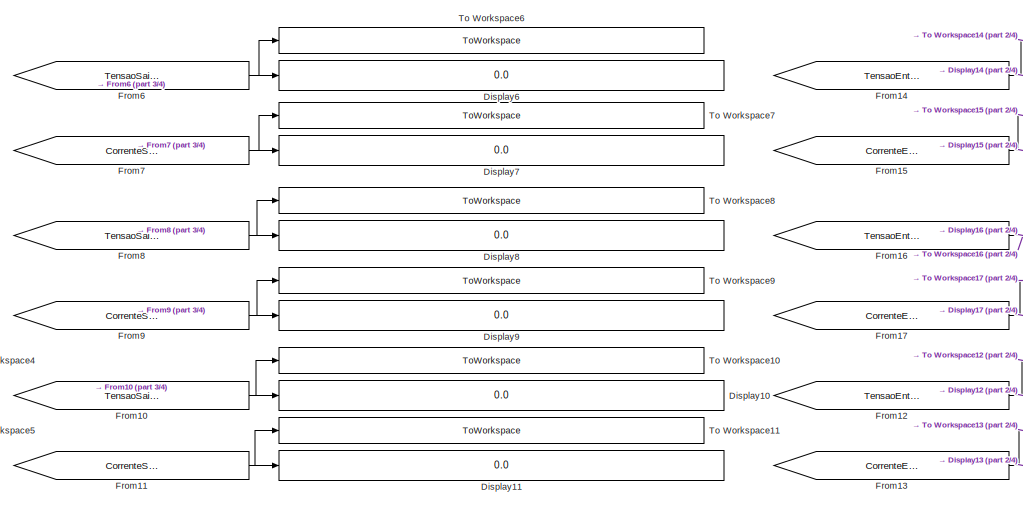
[diagram: root canvas - part 1/4, top center region]
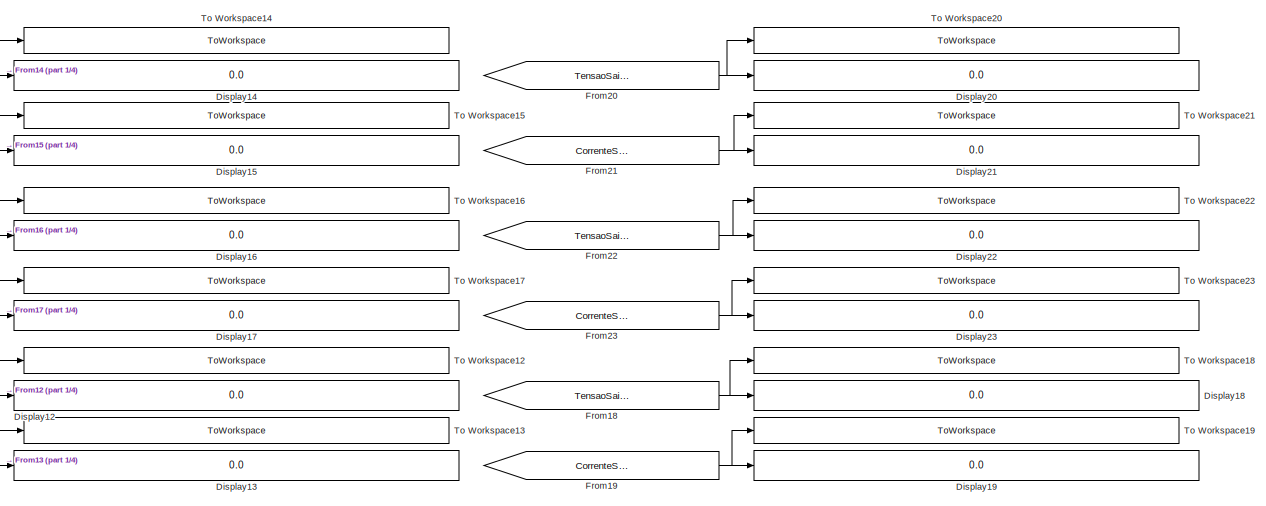
[diagram: root canvas - part 2/4, top right region]
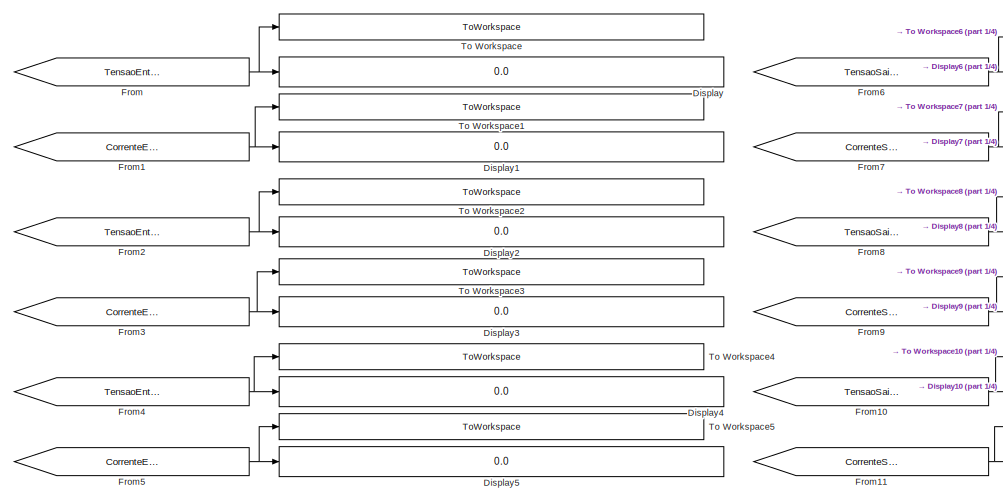
[diagram: root canvas - part 3/4, top left region]
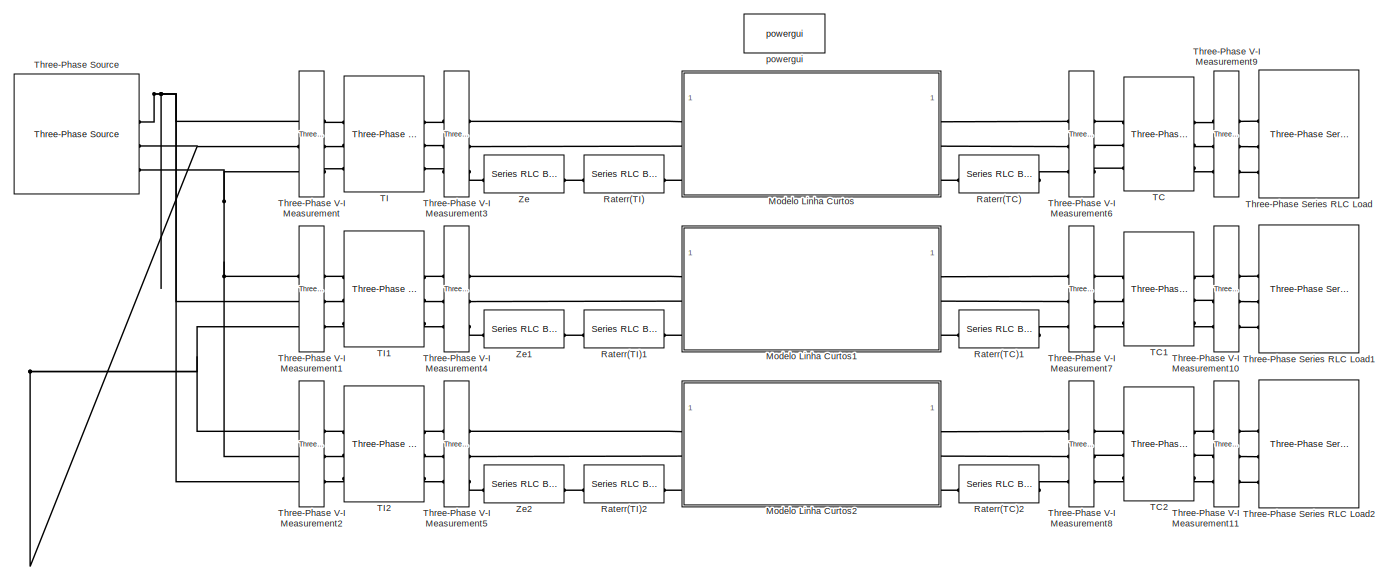
[diagram: root canvas - part 4/4, bottom center region]
MODEL slx_497a77ff1330
KIND model
CONFIG AbsTol = auto
CONFIG EnableMultiTasking = on
CONFIG FixedStep = auto
CONFIG MaxStep = auto
CONFIG MinStep = auto
CONFIG RelTol = 1e-3
CONFIG SampleTimeConstraint = Unconstrained
CONFIG SolverName = ode45
CONFIG StartTime = 0.0
CONFIG StopTime = 0.1
BLOCK [Display] Display
  Decimation = 1
BLOCK [Display] Display1
  Decimation = 1
BLOCK [Display] Display10
  Decimation = 1
BLOCK [Display] Display11
  Decimation = 1
BLOCK [Display] Display12
  Decimation = 1
BLOCK [Display] Display13
  Decimation = 1
BLOCK [Display] Display14
  Decimation = 1
BLOCK [Display] Display15
  Decimation = 1
BLOCK [Display] Display16
  Decimation = 1
BLOCK [Display] Display17
  Decimation = 1
BLOCK [Display] Display18
  Decimation = 1
BLOCK [Display] Display19
  Decimation = 1
BLOCK [Display] Display2
  Decimation = 1
BLOCK [Display] Display20
  Decimation = 1
BLOCK [Display] Display21
  Decimation = 1
BLOCK [Display] Display22
  Decimation = 1
BLOCK [Display] Display23
  Decimation = 1
BLOCK [Display] Display3
  Decimation = 1
BLOCK [Display] Display4
  Decimation = 1
BLOCK [Display] Display5
  Decimation = 1
BLOCK [Display] Display6
  Decimation = 1
BLOCK [Display] Display7
  Decimation = 1
BLOCK [Display] Display8
  Decimation = 1
BLOCK [Display] Display9
  Decimation = 1
BLOCK [From] From
  GotoTag = TensaoEntradaTrafoIsolador1
  TagVisibility = global
BLOCK [From] From1
  GotoTag = CorrenteEntradaTrafoIsolador1
  TagVisibility = global
BLOCK [From] From10
  GotoTag = TensaoSaidaTrafoIsolador3
  TagVisibility = global
BLOCK [From] From11
  GotoTag = CorrenteSaidaTrafoIsolador3
  TagVisibility = global
BLOCK [From] From12
  GotoTag = TensaoEntradaTrafoConsumidor3
  TagVisibility = global
BLOCK [From] From13
  GotoTag = CorrenteEntradaTrafoConsumidor3
  TagVisibility = global
BLOCK [From] From14
  GotoTag = TensaoEntradaTrafoConsumidor1
  TagVisibility = global
BLOCK [From] From15
  GotoTag = CorrenteEntradaTrafoConsumidor1
  TagVisibility = global
BLOCK [From] From16
  GotoTag = TensaoEntradaTrafoConsumidor2
  TagVisibility = global
BLOCK [From] From17
  GotoTag = CorrenteEntradaTrafoConsumidor2
  TagVisibility = global
BLOCK [From] From18
  GotoTag = TensaoSaidaTrafoConsumidor3
  TagVisibility = global
BLOCK [From] From19
  GotoTag = CorrenteSaidaTrafoConsumidor3
  TagVisibility = global
BLOCK [From] From2
  GotoTag = TensaoEntradaTrafoIsolador2
  TagVisibility = global
BLOCK [From] From20
  GotoTag = TensaoSaidaTrafoConsumidor1
  TagVisibility = global
BLOCK [From] From21
  GotoTag = CorrenteSaidaTrafoConsumidor1
  TagVisibility = global
BLOCK [From] From22
  GotoTag = TensaoSaidaTrafoConsumidor2
  TagVisibility = global
BLOCK [From] From23
  GotoTag = CorrenteSaidaTrafoConsumidor2
  TagVisibility = global
BLOCK [From] From3
  GotoTag = CorrenteEntradaTrafoIsolador2
  TagVisibility = global
BLOCK [From] From4
  GotoTag = TensaoEntradaTrafoIsolador3
  TagVisibility = global
BLOCK [From] From5
  GotoTag = CorrenteEntradaTrafoIsolador3
  TagVisibility = global
BLOCK [From] From6
  GotoTag = TensaoSaidaTrafoIsolador1
  TagVisibility = global
BLOCK [From] From7
  GotoTag = CorrenteSaidaTrafoIsolador1
  TagVisibility = global
BLOCK [From] From8
  GotoTag = TensaoSaidaTrafoIsolador2
  TagVisibility = global
BLOCK [From] From9
  GotoTag = CorrenteSaidaTrafoIsolador2
  TagVisibility = global
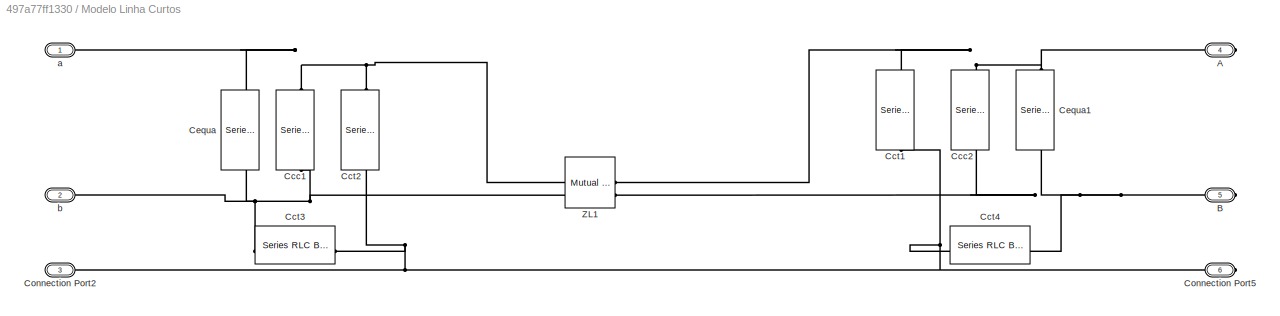
BLOCK [SubSystem] Modelo Linha Curtos
BLOCK [PMIOPort] Modelo Linha Curtos/A
  NameLocation = top
  Port = 4
  Side = Right
BLOCK [PMIOPort] Modelo Linha Curtos/B
  NameLocation = top
  Port = 5
  Side = Right
BLOCK [Reference] Modelo Linha Curtos/Ccc1  REF=spsSeriesRLCBranchLib/Series RLC Branch
  NameLocation = left
  SourceBlock = spsSeriesRLCBranchLib/Series RLC Branch
  SourceType = Series RLC Branch
BLOCK [Reference] Modelo Linha Curtos/Ccc2  REF=spsSeriesRLCBranchLib/Series RLC Branch
  NameLocation = left
  SourceBlock = spsSeriesRLCBranchLib/Series RLC Branch
  SourceType = Series RLC Branch
BLOCK [Reference] Modelo Linha Curtos/Cct1  REF=spsSeriesRLCBranchLib/Series RLC Branch
  NameLocation = left
  SourceBlock = spsSeriesRLCBranchLib/Series RLC Branch
  SourceType = Series RLC Branch
BLOCK [Reference] Modelo Linha Curtos/Cct2  REF=spsSeriesRLCBranchLib/Series RLC Branch
  NameLocation = left
  SourceBlock = spsSeriesRLCBranchLib/Series RLC Branch
  SourceType = Series RLC Branch
BLOCK [Reference] Modelo Linha Curtos/Cct3  REF=spsSeriesRLCBranchLib/Series RLC Branch
  NameLocation = top
  SourceBlock = spsSeriesRLCBranchLib/Series RLC Branch
  SourceType = Series RLC Branch
BLOCK [Reference] Modelo Linha Curtos/Cct4  REF=spsSeriesRLCBranchLib/Series RLC Branch
  SourceBlock = spsSeriesRLCBranchLib/Series RLC Branch
  SourceType = Series RLC Branch
BLOCK [Reference] Modelo Linha Curtos/Cequa  REF=spsSeriesRLCBranchLib/Series RLC Branch
  NameLocation = left
  SourceBlock = spsSeriesRLCBranchLib/Series RLC Branch
  SourceType = Series RLC Branch
BLOCK [Reference] Modelo Linha Curtos/Cequa1  REF=spsSeriesRLCBranchLib/Series RLC Branch
  NameLocation = left
  SourceBlock = spsSeriesRLCBranchLib/Series RLC Branch
  SourceType = Series RLC Branch
BLOCK [PMIOPort] Modelo Linha Curtos/Connection Port2
  Port = 3
  Side = Left
BLOCK [PMIOPort] Modelo Linha Curtos/Connection Port5
  NameLocation = top
  Port = 6
  Side = Right
BLOCK [Reference] Modelo Linha Curtos/ZL1  REF=spsMutualInductanceLib/Mutual Inductance
  AttributesFormatString = \n
  SourceBlock = spsMutualInductanceLib/Mutual Inductance
  SourceType = Mutual Inductance
BLOCK [PMIOPort] Modelo Linha Curtos/a
  Side = Left
BLOCK [PMIOPort] Modelo Linha Curtos/b
  Port = 2
  Side = Left
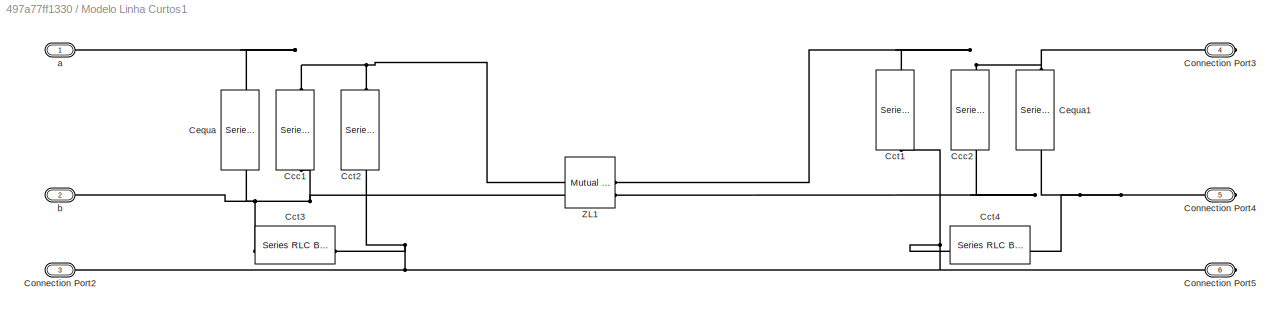
BLOCK [SubSystem] Modelo Linha Curtos1
BLOCK [Reference] Modelo Linha Curtos1/Ccc1  REF=spsSeriesRLCBranchLib/Series RLC Branch
  NameLocation = left
  SourceBlock = spsSeriesRLCBranchLib/Series RLC Branch
  SourceType = Series RLC Branch
BLOCK [Reference] Modelo Linha Curtos1/Ccc2  REF=spsSeriesRLCBranchLib/Series RLC Branch
  NameLocation = left
  SourceBlock = spsSeriesRLCBranchLib/Series RLC Branch
  SourceType = Series RLC Branch
BLOCK [Reference] Modelo Linha Curtos1/Cct1  REF=spsSeriesRLCBranchLib/Series RLC Branch
  NameLocation = left
  SourceBlock = spsSeriesRLCBranchLib/Series RLC Branch
  SourceType = Series RLC Branch
BLOCK [Reference] Modelo Linha Curtos1/Cct2  REF=spsSeriesRLCBranchLib/Series RLC Branch
  NameLocation = left
  SourceBlock = spsSeriesRLCBranchLib/Series RLC Branch
  SourceType = Series RLC Branch
BLOCK [Reference] Modelo Linha Curtos1/Cct3  REF=spsSeriesRLCBranchLib/Series RLC Branch
  NameLocation = top
  SourceBlock = spsSeriesRLCBranchLib/Series RLC Branch
  SourceType = Series RLC Branch
BLOCK [Reference] Modelo Linha Curtos1/Cct4  REF=spsSeriesRLCBranchLib/Series RLC Branch
  SourceBlock = spsSeriesRLCBranchLib/Series RLC Branch
  SourceType = Series RLC Branch
BLOCK [Reference] Modelo Linha Curtos1/Cequa  REF=spsSeriesRLCBranchLib/Series RLC Branch
  NameLocation = left
  SourceBlock = spsSeriesRLCBranchLib/Series RLC Branch
  SourceType = Series RLC Branch
BLOCK [Reference] Modelo Linha Curtos1/Cequa1  REF=spsSeriesRLCBranchLib/Series RLC Branch
  NameLocation = left
  SourceBlock = spsSeriesRLCBranchLib/Series RLC Branch
  SourceType = Series RLC Branch
BLOCK [PMIOPort] Modelo Linha Curtos1/Connection Port2
  Port = 3
  Side = Left
BLOCK [PMIOPort] Modelo Linha Curtos1/Connection Port3
  NameLocation = top
  Port = 4
  Side = Right
BLOCK [PMIOPort] Modelo Linha Curtos1/Connection Port4
  NameLocation = top
  Port = 5
  Side = Right
BLOCK [PMIOPort] Modelo Linha Curtos1/Connection Port5
  NameLocation = top
  Port = 6
  Side = Right
BLOCK [Reference] Modelo Linha Curtos1/ZL1  REF=spsMutualInductanceLib/Mutual Inductance
  AttributesFormatString = \n
  SourceBlock = spsMutualInductanceLib/Mutual Inductance
  SourceType = Mutual Inductance
BLOCK [PMIOPort] Modelo Linha Curtos1/a
  Side = Left
BLOCK [PMIOPort] Modelo Linha Curtos1/b
  Port = 2
  Side = Left
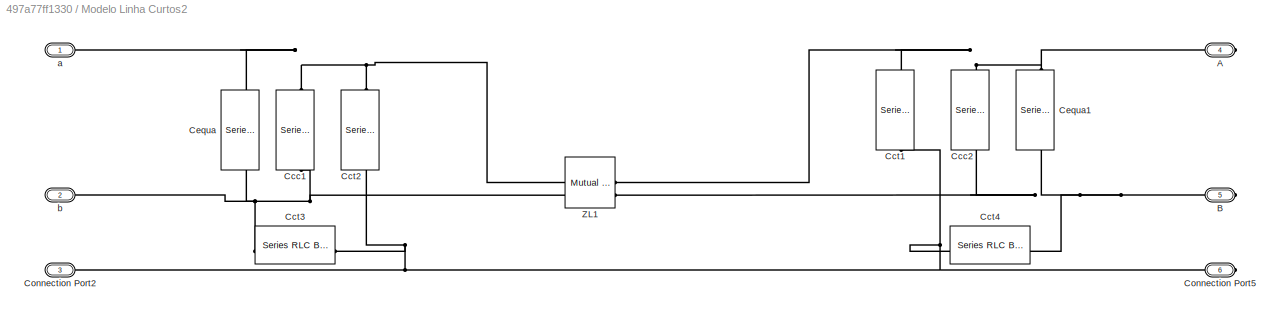
BLOCK [SubSystem] Modelo Linha Curtos2
BLOCK [PMIOPort] Modelo Linha Curtos2/A
  NameLocation = top
  Port = 4
  Side = Right
BLOCK [PMIOPort] Modelo Linha Curtos2/B
  NameLocation = top
  Port = 5
  Side = Right
BLOCK [Reference] Modelo Linha Curtos2/Ccc1  REF=spsSeriesRLCBranchLib/Series RLC Branch
  NameLocation = left
  SourceBlock = spsSeriesRLCBranchLib/Series RLC Branch
  SourceType = Series RLC Branch
BLOCK [Reference] Modelo Linha Curtos2/Ccc2  REF=spsSeriesRLCBranchLib/Series RLC Branch
  NameLocation = left
  SourceBlock = spsSeriesRLCBranchLib/Series RLC Branch
  SourceType = Series RLC Branch
BLOCK [Reference] Modelo Linha Curtos2/Cct1  REF=spsSeriesRLCBranchLib/Series RLC Branch
  NameLocation = left
  SourceBlock = spsSeriesRLCBranchLib/Series RLC Branch
  SourceType = Series RLC Branch
BLOCK [Reference] Modelo Linha Curtos2/Cct2  REF=spsSeriesRLCBranchLib/Series RLC Branch
  NameLocation = left
  SourceBlock = spsSeriesRLCBranchLib/Series RLC Branch
  SourceType = Series RLC Branch
BLOCK [Reference] Modelo Linha Curtos2/Cct3  REF=spsSeriesRLCBranchLib/Series RLC Branch
  NameLocation = top
  SourceBlock = spsSeriesRLCBranchLib/Series RLC Branch
  SourceType = Series RLC Branch
BLOCK [Reference] Modelo Linha Curtos2/Cct4  REF=spsSeriesRLCBranchLib/Series RLC Branch
  SourceBlock = spsSeriesRLCBranchLib/Series RLC Branch
  SourceType = Series RLC Branch
BLOCK [Reference] Modelo Linha Curtos2/Cequa  REF=spsSeriesRLCBranchLib/Series RLC Branch
  NameLocation = left
  SourceBlock = spsSeriesRLCBranchLib/Series RLC Branch
  SourceType = Series RLC Branch
BLOCK [Reference] Modelo Linha Curtos2/Cequa1  REF=spsSeriesRLCBranchLib/Series RLC Branch
  NameLocation = left
  SourceBlock = spsSeriesRLCBranchLib/Series RLC Branch
  SourceType = Series RLC Branch
BLOCK [PMIOPort] Modelo Linha Curtos2/Connection Port2
  Port = 3
  Side = Left
BLOCK [PMIOPort] Modelo Linha Curtos2/Connection Port5
  NameLocation = top
  Port = 6
  Side = Right
BLOCK [Reference] Modelo Linha Curtos2/ZL1  REF=spsMutualInductanceLib/Mutual Inductance
  AttributesFormatString = \n
  SourceBlock = spsMutualInductanceLib/Mutual Inductance
  SourceType = Mutual Inductance
BLOCK [PMIOPort] Modelo Linha Curtos2/a
  Side = Left
BLOCK [PMIOPort] Modelo Linha Curtos2/b
  Port = 2
  Side = Left
BLOCK [Reference] Raterr(TC)  REF=spsSeriesRLCBranchLib/Series RLC Branch
  SourceBlock = spsSeriesRLCBranchLib/Series RLC Branch
  SourceType = Series RLC Branch
BLOCK [Reference] Raterr(TC)1  REF=spsSeriesRLCBranchLib/Series RLC Branch
  SourceBlock = spsSeriesRLCBranchLib/Series RLC Branch
  SourceType = Series RLC Branch
BLOCK [Reference] Raterr(TC)2  REF=spsSeriesRLCBranchLib/Series RLC Branch
  SourceBlock = spsSeriesRLCBranchLib/Series RLC Branch
  SourceType = Series RLC Branch
BLOCK [Reference] Raterr(TI)  REF=spsSeriesRLCBranchLib/Series RLC Branch
  SourceBlock = spsSeriesRLCBranchLib/Series RLC Branch
  SourceType = Series RLC Branch
BLOCK [Reference] Raterr(TI)1  REF=spsSeriesRLCBranchLib/Series RLC Branch
  SourceBlock = spsSeriesRLCBranchLib/Series RLC Branch
  SourceType = Series RLC Branch
BLOCK [Reference] Raterr(TI)2  REF=spsSeriesRLCBranchLib/Series RLC Branch
  SourceBlock = spsSeriesRLCBranchLib/Series RLC Branch
  SourceType = Series RLC Branch
BLOCK [Reference] TC  REF=spsThreePhaseTransformerTwoWindingsLib/Three-Phase
Transformer
(Two Windings)
  SourceBlock = spsThreePhaseTransformerTwoWindingsLib/Three-Phase\nTransformer\n(Two Windings)
  SourceType = Three-Phase Transformer (Two Windings)
BLOCK [Reference] TC1  REF=spsThreePhaseTransformerTwoWindingsLib/Three-Phase
Transformer
(Two Windings)
  SourceBlock = spsThreePhaseTransformerTwoWindingsLib/Three-Phase\nTransformer\n(Two Windings)
  SourceType = Three-Phase Transformer (Two Windings)
BLOCK [Reference] TC2  REF=spsThreePhaseTransformerTwoWindingsLib/Three-Phase
Transformer
(Two Windings)
  SourceBlock = spsThreePhaseTransformerTwoWindingsLib/Three-Phase\nTransformer\n(Two Windings)
  SourceType = Three-Phase Transformer (Two Windings)
BLOCK [Reference] TI  REF=spsThreePhaseTransformerTwoWindingsLib/Three-Phase
Transformer
(Two Windings)
  SourceBlock = spsThreePhaseTransformerTwoWindingsLib/Three-Phase\nTransformer\n(Two Windings)
  SourceType = Three-Phase Transformer (Two Windings)
BLOCK [Reference] TI1  REF=spsThreePhaseTransformerTwoWindingsLib/Three-Phase
Transformer
(Two Windings)
  SourceBlock = spsThreePhaseTransformerTwoWindingsLib/Three-Phase\nTransformer\n(Two Windings)
  SourceType = Three-Phase Transformer (Two Windings)
BLOCK [Reference] TI2  REF=spsThreePhaseTransformerTwoWindingsLib/Three-Phase
Transformer
(Two Windings)
  SourceBlock = spsThreePhaseTransformerTwoWindingsLib/Three-Phase\nTransformer\n(Two Windings)
  SourceType = Three-Phase Transformer (Two Windings)
BLOCK [Reference] Three-Phase Series RLC Load  REF=spsThreePhaseSeriesRLCLoadLib/Three-Phase
Series RLC Load
  AttributesFormatString = \n
  NameLocation = right
  SourceBlock = spsThreePhaseSeriesRLCLoadLib/Three-Phase\nSeries RLC Load
  SourceType = Three-Phase Series RLC Load
BLOCK [Reference] Three-Phase Series RLC Load1  REF=spsThreePhaseSeriesRLCLoadLib/Three-Phase
Series RLC Load
  AttributesFormatString = \n
  NameLocation = right
  SourceBlock = spsThreePhaseSeriesRLCLoadLib/Three-Phase\nSeries RLC Load
  SourceType = Three-Phase Series RLC Load
BLOCK [Reference] Three-Phase Series RLC Load2  REF=spsThreePhaseSeriesRLCLoadLib/Three-Phase
Series RLC Load
  AttributesFormatString = \n
  NameLocation = right
  SourceBlock = spsThreePhaseSeriesRLCLoadLib/Three-Phase\nSeries RLC Load
  SourceType = Three-Phase Series RLC Load
BLOCK [Reference] Three-Phase Source  REF=spsThreePhaseSourceLib/Three-Phase Source
  SourceBlock = spsThreePhaseSourceLib/Three-Phase Source
  SourceType = Three-Phase Source
BLOCK [Reference] Three-Phase V-I Measurement  REF=spsThreePhaseVIMeasurementLib/Three-Phase
V-I Measurement
  LibrarySourceBlock = sps_lib/Sensors and Measurements/Three-Phase\nV-I Measurement
  SourceBlock = spsThreePhaseVIMeasurementLib/Three-Phase\nV-I Measurement
  SourceType = Three-Phase VI Measurement
BLOCK [Reference] Three-Phase V-I Measurement1  REF=spsThreePhaseVIMeasurementLib/Three-Phase
V-I Measurement
  LibrarySourceBlock = sps_lib/Sensors and Measurements/Three-Phase\nV-I Measurement
  SourceBlock = spsThreePhaseVIMeasurementLib/Three-Phase\nV-I Measurement
  SourceType = Three-Phase VI Measurement
BLOCK [Reference] Three-Phase V-I Measurement10  REF=spsThreePhaseVIMeasurementLib/Three-Phase
V-I Measurement
  LibrarySourceBlock = sps_lib/Sensors and Measurements/Three-Phase\nV-I Measurement
  SourceBlock = spsThreePhaseVIMeasurementLib/Three-Phase\nV-I Measurement
  SourceType = Three-Phase VI Measurement
BLOCK [Reference] Three-Phase V-I Measurement11  REF=spsThreePhaseVIMeasurementLib/Three-Phase
V-I Measurement
  LibrarySourceBlock = sps_lib/Sensors and Measurements/Three-Phase\nV-I Measurement
  SourceBlock = spsThreePhaseVIMeasurementLib/Three-Phase\nV-I Measurement
  SourceType = Three-Phase VI Measurement
BLOCK [Reference] Three-Phase V-I Measurement2  REF=spsThreePhaseVIMeasurementLib/Three-Phase
V-I Measurement
  LibrarySourceBlock = sps_lib/Sensors and Measurements/Three-Phase\nV-I Measurement
  SourceBlock = spsThreePhaseVIMeasurementLib/Three-Phase\nV-I Measurement
  SourceType = Three-Phase VI Measurement
BLOCK [Reference] Three-Phase V-I Measurement3  REF=spsThreePhaseVIMeasurementLib/Three-Phase
V-I Measurement
  LibrarySourceBlock = sps_lib/Sensors and Measurements/Three-Phase\nV-I Measurement
  SourceBlock = spsThreePhaseVIMeasurementLib/Three-Phase\nV-I Measurement
  SourceType = Three-Phase VI Measurement
BLOCK [Reference] Three-Phase V-I Measurement4  REF=spsThreePhaseVIMeasurementLib/Three-Phase
V-I Measurement
  LibrarySourceBlock = sps_lib/Sensors and Measurements/Three-Phase\nV-I Measurement
  SourceBlock = spsThreePhaseVIMeasurementLib/Three-Phase\nV-I Measurement
  SourceType = Three-Phase VI Measurement
BLOCK [Reference] Three-Phase V-I Measurement5  REF=spsThreePhaseVIMeasurementLib/Three-Phase
V-I Measurement
  LibrarySourceBlock = sps_lib/Sensors and Measurements/Three-Phase\nV-I Measurement
  SourceBlock = spsThreePhaseVIMeasurementLib/Three-Phase\nV-I Measurement
  SourceType = Three-Phase VI Measurement
BLOCK [Reference] Three-Phase V-I Measurement6  REF=spsThreePhaseVIMeasurementLib/Three-Phase
V-I Measurement
  LibrarySourceBlock = sps_lib/Sensors and Measurements/Three-Phase\nV-I Measurement
  SourceBlock = spsThreePhaseVIMeasurementLib/Three-Phase\nV-I Measurement
  SourceType = Three-Phase VI Measurement
BLOCK [Reference] Three-Phase V-I Measurement7  REF=spsThreePhaseVIMeasurementLib/Three-Phase
V-I Measurement
  LibrarySourceBlock = sps_lib/Sensors and Measurements/Three-Phase\nV-I Measurement
  SourceBlock = spsThreePhaseVIMeasurementLib/Three-Phase\nV-I Measurement
  SourceType = Three-Phase VI Measurement
BLOCK [Reference] Three-Phase V-I Measurement8  REF=spsThreePhaseVIMeasurementLib/Three-Phase
V-I Measurement
  LibrarySourceBlock = sps_lib/Sensors and Measurements/Three-Phase\nV-I Measurement
  SourceBlock = spsThreePhaseVIMeasurementLib/Three-Phase\nV-I Measurement
  SourceType = Three-Phase VI Measurement
BLOCK [Reference] Three-Phase V-I Measurement9  REF=spsThreePhaseVIMeasurementLib/Three-Phase
V-I Measurement
  LibrarySourceBlock = sps_lib/Sensors and Measurements/Three-Phase\nV-I Measurement
  SourceBlock = spsThreePhaseVIMeasurementLib/Three-Phase\nV-I Measurement
  SourceType = Three-Phase VI Measurement
BLOCK [ToWorkspace] To Workspace
  FixptAsFi = on
  MaxDataPoints = 1
  SampleTime = -1
  VariableName = Workspace_TensaoEntradaTrafoIsolador1
BLOCK [ToWorkspace] To Workspace1
  FixptAsFi = on
  MaxDataPoints = 1
  SampleTime = -1
  VariableName = Workspace_CorrenteEntradaTrafoIsolador1
BLOCK [ToWorkspace] To Workspace10
  FixptAsFi = on
  MaxDataPoints = 1
  SampleTime = -1
  VariableName = Workspace_TensaoSaidaTrafoIsolador3
BLOCK [ToWorkspace] To Workspace11
  FixptAsFi = on
  MaxDataPoints = 1
  SampleTime = -1
  VariableName = Workspace_CorrenteSaidaTrafoIsolador3
BLOCK [ToWorkspace] To Workspace12
  FixptAsFi = on
  MaxDataPoints = 1
  SampleTime = -1
  VariableName = Workspace_TensaoEntradaTrafoConsumidor3
BLOCK [ToWorkspace] To Workspace13
  FixptAsFi = on
  MaxDataPoints = 1
  SampleTime = -1
  VariableName = Workspace_CorrenteEntradaTrafoConsumidor3
BLOCK [ToWorkspace] To Workspace14
  FixptAsFi = on
  MaxDataPoints = 1
  SampleTime = -1
  VariableName = Workspace_TensaoEntradaTrafoConsumidor1
BLOCK [ToWorkspace] To Workspace15
  FixptAsFi = on
  MaxDataPoints = 1
  SampleTime = -1
  VariableName = Workspace_CorrenteEntradaTrafoConsumidor1
BLOCK [ToWorkspace] To Workspace16
  FixptAsFi = on
  MaxDataPoints = 1
  SampleTime = -1
  VariableName = Workspace_TensaoEntradaTrafoConsumidor2
BLOCK [ToWorkspace] To Workspace17
  FixptAsFi = on
  MaxDataPoints = 1
  SampleTime = -1
  VariableName = Workspace_CorrenteEntradaTrafoConsumidor2
BLOCK [ToWorkspace] To Workspace18
  FixptAsFi = on
  MaxDataPoints = 1
  SampleTime = -1
  VariableName = Workspace_TensaoSaidaTrafoConsumidor3
BLOCK [ToWorkspace] To Workspace19
  FixptAsFi = on
  MaxDataPoints = 1
  SampleTime = -1
  VariableName = Workspace_CorrenteSaidaTrafoConsumidor3
BLOCK [ToWorkspace] To Workspace2
  FixptAsFi = on
  MaxDataPoints = 1
  SampleTime = -1
  VariableName = Workspace_TensaoEntradaTrafoIsolador2
BLOCK [ToWorkspace] To Workspace20
  FixptAsFi = on
  MaxDataPoints = 1
  SampleTime = -1
  VariableName = Workspace_TensaoSaidaTrafoConsumidor1
BLOCK [ToWorkspace] To Workspace21
  FixptAsFi = on
  MaxDataPoints = 1
  SampleTime = -1
  VariableName = Workspace_CorrenteSaidaTrafoConsumidor1
BLOCK [ToWorkspace] To Workspace22
  FixptAsFi = on
  MaxDataPoints = 1
  SampleTime = -1
  VariableName = Workspace_TensaoSaidaTrafoConsumidor2
BLOCK [ToWorkspace] To Workspace23
  FixptAsFi = on
  MaxDataPoints = 1
  SampleTime = -1
  VariableName = Workspace_CorrenteSaidaTrafoConsumidor2
BLOCK [ToWorkspace] To Workspace3
  FixptAsFi = on
  MaxDataPoints = 1
  SampleTime = -1
  VariableName = Workspace_CorrenteEntradaTrafoIsolador2
BLOCK [ToWorkspace] To Workspace4
  FixptAsFi = on
  MaxDataPoints = 1
  SampleTime = -1
  VariableName = Workspace_TensaoEntradaTrafoIsolador3
BLOCK [ToWorkspace] To Workspace5
  FixptAsFi = on
  MaxDataPoints = 1
  SampleTime = -1
  VariableName = Workspace_CorrenteEntradaTrafoIsolador3
BLOCK [ToWorkspace] To Workspace6
  FixptAsFi = on
  MaxDataPoints = 1
  SampleTime = -1
  VariableName = Workspace_TensaoSaidaTrafoIsolador1
BLOCK [ToWorkspace] To Workspace7
  FixptAsFi = on
  MaxDataPoints = 1
  SampleTime = -1
  VariableName = Workspace_CorrenteSaidaTrafoIsolador1
BLOCK [ToWorkspace] To Workspace8
  FixptAsFi = on
  MaxDataPoints = 1
  SampleTime = -1
  VariableName = Workspace_TensaoSaidaTrafoIsolador2
BLOCK [ToWorkspace] To Workspace9
  FixptAsFi = on
  MaxDataPoints = 1
  SampleTime = -1
  VariableName = Workspace_CorrenteSaidaTrafoIsolador2
BLOCK [Reference] Ze  REF=spsSeriesRLCBranchLib/Series RLC Branch
  SourceBlock = spsSeriesRLCBranchLib/Series RLC Branch
  SourceType = Series RLC Branch
BLOCK [Reference] Ze1  REF=spsSeriesRLCBranchLib/Series RLC Branch
  SourceBlock = spsSeriesRLCBranchLib/Series RLC Branch
  SourceType = Series RLC Branch
BLOCK [Reference] Ze2  REF=spsSeriesRLCBranchLib/Series RLC Branch
  SourceBlock = spsSeriesRLCBranchLib/Series RLC Branch
  SourceType = Series RLC Branch
BLOCK [Reference] powergui  REF=spspowerguiLib/powergui
  Priority = 1
  SourceBlock = spspowerguiLib/powergui
  SourceType = PSB option menu block
NET From10:1 -> Display10:1, To Workspace10:1
NET From11:1 -> Display11:1, To Workspace11:1
NET From12:1 -> Display12:1, To Workspace12:1
NET From13:1 -> Display13:1, To Workspace13:1
NET From14:1 -> Display14:1, To Workspace14:1
NET From15:1 -> Display15:1, To Workspace15:1
NET From16:1 -> Display16:1, To Workspace16:1
NET From17:1 -> Display17:1, To Workspace17:1
NET From18:1 -> Display18:1, To Workspace18:1
NET From19:1 -> Display19:1, To Workspace19:1
NET From1:1 -> Display1:1, To Workspace1:1
NET From20:1 -> Display20:1, To Workspace20:1
NET From21:1 -> Display21:1, To Workspace21:1
NET From22:1 -> Display22:1, To Workspace22:1
NET From23:1 -> Display23:1, To Workspace23:1
NET From2:1 -> Display2:1, To Workspace2:1
NET From3:1 -> Display3:1, To Workspace3:1
NET From4:1 -> Display4:1, To Workspace4:1
NET From5:1 -> Display5:1, To Workspace5:1
NET From6:1 -> Display6:1, To Workspace6:1
NET From7:1 -> Display7:1, To Workspace7:1
NET From8:1 -> Display8:1, To Workspace8:1
NET From9:1 -> Display9:1, To Workspace9:1
NET From:1 -> Display:1, To Workspace:1
PNET net1: Modelo Linha Curtos/A:RConn1 -- Modelo Linha Curtos/Ccc2:LConn1 -- Modelo Linha Curtos/Cct1:LConn1 -- Modelo Linha Curtos/Cequa1:LConn1 -- Modelo Linha Curtos/ZL1:RConn1
PNET net2: Modelo Linha Curtos/B:RConn1 -- Modelo Linha Curtos/Ccc2:RConn1 -- Modelo Linha Curtos/Cct4:LConn1 -- Modelo Linha Curtos/Cequa1:RConn1 -- Modelo Linha Curtos/ZL1:RConn2
PNET net3: Modelo Linha Curtos/Ccc1:LConn1 -- Modelo Linha Curtos/Cct2:LConn1 -- Modelo Linha Curtos/Cequa:LConn1 -- Modelo Linha Curtos/ZL1:LConn1 -- Modelo Linha Curtos/a:RConn1
PNET net4: Modelo Linha Curtos/Ccc1:RConn1 -- Modelo Linha Curtos/Cct3:LConn1 -- Modelo Linha Curtos/Cequa:RConn1 -- Modelo Linha Curtos/ZL1:LConn2 -- Modelo Linha Curtos/b:RConn1
PNET net5: Modelo Linha Curtos/Cct1:RConn1 -- Modelo Linha Curtos/Cct2:RConn1 -- Modelo Linha Curtos/Cct3:RConn1 -- Modelo Linha Curtos/Cct4:RConn1 -- Modelo Linha Curtos/Connection Port2:RConn1 -- Modelo Linha Curtos/Connection Port5:RConn1
PNET net6: Modelo Linha Curtos1/Ccc1:LConn1 -- Modelo Linha Curtos1/Cct2:LConn1 -- Modelo Linha Curtos1/Cequa:LConn1 -- Modelo Linha Curtos1/ZL1:LConn1 -- Modelo Linha Curtos1/a:RConn1
PNET net7: Modelo Linha Curtos1/Ccc1:RConn1 -- Modelo Linha Curtos1/Cct3:LConn1 -- Modelo Linha Curtos1/Cequa:RConn1 -- Modelo Linha Curtos1/ZL1:LConn2 -- Modelo Linha Curtos1/b:RConn1
PNET net8: Modelo Linha Curtos1/Ccc2:LConn1 -- Modelo Linha Curtos1/Cct1:LConn1 -- Modelo Linha Curtos1/Cequa1:LConn1 -- Modelo Linha Curtos1/Connection Port3:RConn1 -- Modelo Linha Curtos1/ZL1:RConn1
PNET net9: Modelo Linha Curtos1/Ccc2:RConn1 -- Modelo Linha Curtos1/Cct4:LConn1 -- Modelo Linha Curtos1/Cequa1:RConn1 -- Modelo Linha Curtos1/Connection Port4:RConn1 -- Modelo Linha Curtos1/ZL1:RConn2
PNET net10: Modelo Linha Curtos1/Cct1:RConn1 -- Modelo Linha Curtos1/Cct2:RConn1 -- Modelo Linha Curtos1/Cct3:RConn1 -- Modelo Linha Curtos1/Cct4:RConn1 -- Modelo Linha Curtos1/Connection Port2:RConn1 -- Modelo Linha Curtos1/Connection Port5:RConn1
PLINE Modelo Linha Curtos1:LConn1 -- Three-Phase V-I Measurement4:RConn1
PLINE Modelo Linha Curtos1:LConn2 -- Three-Phase V-I Measurement4:RConn2
PLINE Modelo Linha Curtos1:LConn3 -- Raterr(TI)1:RConn1
PLINE Modelo Linha Curtos1:RConn1 -- Three-Phase V-I Measurement7:LConn1
PLINE Modelo Linha Curtos1:RConn2 -- Three-Phase V-I Measurement7:LConn2
PLINE Modelo Linha Curtos1:RConn3 -- Raterr(TC)1:LConn1
PNET net11: Modelo Linha Curtos2/A:RConn1 -- Modelo Linha Curtos2/Ccc2:LConn1 -- Modelo Linha Curtos2/Cct1:LConn1 -- Modelo Linha Curtos2/Cequa1:LConn1 -- Modelo Linha Curtos2/ZL1:RConn1
PNET net12: Modelo Linha Curtos2/B:RConn1 -- Modelo Linha Curtos2/Ccc2:RConn1 -- Modelo Linha Curtos2/Cct4:LConn1 -- Modelo Linha Curtos2/Cequa1:RConn1 -- Modelo Linha Curtos2/ZL1:RConn2
PNET net13: Modelo Linha Curtos2/Ccc1:LConn1 -- Modelo Linha Curtos2/Cct2:LConn1 -- Modelo Linha Curtos2/Cequa:LConn1 -- Modelo Linha Curtos2/ZL1:LConn1 -- Modelo Linha Curtos2/a:RConn1
PNET net14: Modelo Linha Curtos2/Ccc1:RConn1 -- Modelo Linha Curtos2/Cct3:LConn1 -- Modelo Linha Curtos2/Cequa:RConn1 -- Modelo Linha Curtos2/ZL1:LConn2 -- Modelo Linha Curtos2/b:RConn1
PNET net15: Modelo Linha Curtos2/Cct1:RConn1 -- Modelo Linha Curtos2/Cct2:RConn1 -- Modelo Linha Curtos2/Cct3:RConn1 -- Modelo Linha Curtos2/Cct4:RConn1 -- Modelo Linha Curtos2/Connection Port2:RConn1 -- Modelo Linha Curtos2/Connection Port5:RConn1
PLINE Modelo Linha Curtos2:LConn1 -- Three-Phase V-I Measurement5:RConn1
PLINE Modelo Linha Curtos2:LConn2 -- Three-Phase V-I Measurement5:RConn2
PLINE Modelo Linha Curtos2:LConn3 -- Raterr(TI)2:RConn1
PLINE Modelo Linha Curtos2:RConn1 -- Three-Phase V-I Measurement8:LConn1
PLINE Modelo Linha Curtos2:RConn2 -- Three-Phase V-I Measurement8:LConn2
PLINE Modelo Linha Curtos2:RConn3 -- Raterr(TC)2:LConn1
PLINE Modelo Linha Curtos:LConn1 -- Three-Phase V-I Measurement3:RConn1
PLINE Modelo Linha Curtos:LConn2 -- Three-Phase V-I Measurement3:RConn2
PLINE Modelo Linha Curtos:LConn3 -- Raterr(TI):RConn1
PLINE Modelo Linha Curtos:RConn1 -- Three-Phase V-I Measurement6:LConn1
PLINE Modelo Linha Curtos:RConn2 -- Three-Phase V-I Measurement6:LConn2
PLINE Modelo Linha Curtos:RConn3 -- Raterr(TC):LConn1
PLINE Raterr(TC)1:RConn1 -- Three-Phase V-I Measurement7:LConn3
PLINE Raterr(TC)2:RConn1 -- Three-Phase V-I Measurement8:LConn3
PLINE Raterr(TC):RConn1 -- Three-Phase V-I Measurement6:LConn3
PLINE Raterr(TI)1:LConn1 -- Ze1:RConn1
PLINE Raterr(TI)2:LConn1 -- Ze2:RConn1
PLINE Raterr(TI):LConn1 -- Ze:RConn1
PLINE TC1:LConn1 -- Three-Phase V-I Measurement7:RConn1
PLINE TC1:LConn2 -- Three-Phase V-I Measurement7:RConn2
PLINE TC1:LConn3 -- Three-Phase V-I Measurement7:RConn3
PLINE TC1:RConn1 -- Three-Phase V-I Measurement10:LConn1
PLINE TC1:RConn2 -- Three-Phase V-I Measurement10:LConn2
PLINE TC1:RConn3 -- Three-Phase V-I Measurement10:LConn3
PLINE TC2:LConn1 -- Three-Phase V-I Measurement8:RConn1
PLINE TC2:LConn2 -- Three-Phase V-I Measurement8:RConn2
PLINE TC2:LConn3 -- Three-Phase V-I Measurement8:RConn3
PLINE TC2:RConn1 -- Three-Phase V-I Measurement11:LConn1
PLINE TC2:RConn2 -- Three-Phase V-I Measurement11:LConn2
PLINE TC2:RConn3 -- Three-Phase V-I Measurement11:LConn3
PLINE TC:LConn1 -- Three-Phase V-I Measurement6:RConn1
PLINE TC:LConn2 -- Three-Phase V-I Measurement6:RConn2
PLINE TC:LConn3 -- Three-Phase V-I Measurement6:RConn3
PLINE TC:RConn1 -- Three-Phase V-I Measurement9:LConn1
PLINE TC:RConn2 -- Three-Phase V-I Measurement9:LConn2
PLINE TC:RConn3 -- Three-Phase V-I Measurement9:LConn3
PLINE TI1:LConn1 -- Three-Phase V-I Measurement1:RConn1
PLINE TI1:LConn2 -- Three-Phase V-I Measurement1:RConn2
PLINE TI1:LConn3 -- Three-Phase V-I Measurement1:RConn3
PLINE TI1:RConn1 -- Three-Phase V-I Measurement4:LConn1
PLINE TI1:RConn2 -- Three-Phase V-I Measurement4:LConn2
PLINE TI1:RConn3 -- Three-Phase V-I Measurement4:LConn3
PLINE TI2:LConn1 -- Three-Phase V-I Measurement2:RConn1
PLINE TI2:LConn2 -- Three-Phase V-I Measurement2:RConn2
PLINE TI2:LConn3 -- Three-Phase V-I Measurement2:RConn3
PLINE TI2:RConn1 -- Three-Phase V-I Measurement5:LConn1
PLINE TI2:RConn2 -- Three-Phase V-I Measurement5:LConn2
PLINE TI2:RConn3 -- Three-Phase V-I Measurement5:LConn3
PLINE TI:LConn1 -- Three-Phase V-I Measurement:RConn1
PLINE TI:LConn2 -- Three-Phase V-I Measurement:RConn2
PLINE TI:LConn3 -- Three-Phase V-I Measurement:RConn3
PLINE TI:RConn1 -- Three-Phase V-I Measurement3:LConn1
PLINE TI:RConn2 -- Three-Phase V-I Measurement3:LConn2
PLINE TI:RConn3 -- Three-Phase V-I Measurement3:LConn3
PLINE Three-Phase Series RLC Load1:LConn1 -- Three-Phase V-I Measurement10:RConn1
PLINE Three-Phase Series RLC Load1:LConn2 -- Three-Phase V-I Measurement10:RConn2
PLINE Three-Phase Series RLC Load1:LConn3 -- Three-Phase V-I Measurement10:RConn3
PLINE Three-Phase Series RLC Load2:LConn1 -- Three-Phase V-I Measurement11:RConn1
PLINE Three-Phase Series RLC Load2:LConn2 -- Three-Phase V-I Measurement11:RConn2
PLINE Three-Phase Series RLC Load2:LConn3 -- Three-Phase V-I Measurement11:RConn3
PLINE Three-Phase Series RLC Load:LConn1 -- Three-Phase V-I Measurement9:RConn1
PLINE Three-Phase Series RLC Load:LConn2 -- Three-Phase V-I Measurement9:RConn2
PLINE Three-Phase Series RLC Load:LConn3 -- Three-Phase V-I Measurement9:RConn3
PNET net16: Three-Phase Source:RConn1 -- Three-Phase V-I Measurement1:LConn2 -- Three-Phase V-I Measurement2:LConn3 -- Three-Phase V-I Measurement:LConn1
PNET net17: Three-Phase Source:RConn2 -- Three-Phase V-I Measurement1:LConn3 -- Three-Phase V-I Measurement2:LConn1 -- Three-Phase V-I Measurement:LConn2
PNET net18: Three-Phase Source:RConn3 -- Three-Phase V-I Measurement1:LConn1 -- Three-Phase V-I Measurement2:LConn2 -- Three-Phase V-I Measurement:LConn3
PLINE Three-Phase V-I Measurement3:RConn3 -- Ze:LConn1
PLINE Three-Phase V-I Measurement4:RConn3 -- Ze1:LConn1
PLINE Three-Phase V-I Measurement5:RConn3 -- Ze2:LConn1
note: NET lines group one-source signal fan-out (src -> all destinations, sorted); 1:1 wires keep LINE; PNET lines group multi-terminal physical nets as a canonical sorted terminal list (undirected conserving connections); 2-terminal nets keep the pairwise PLINE form
